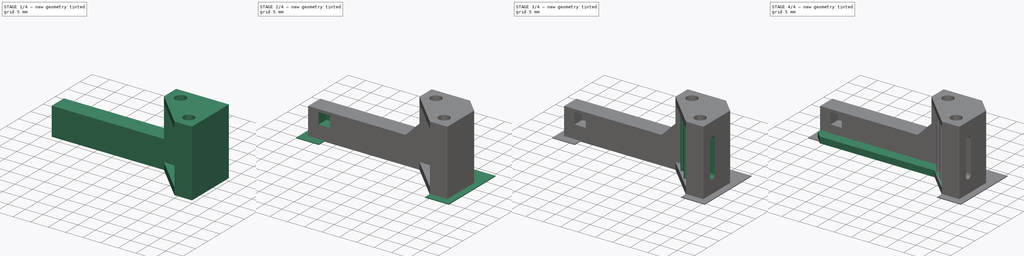
[diagram: build sequence overview — one tinted view per stage of 4, left to right]
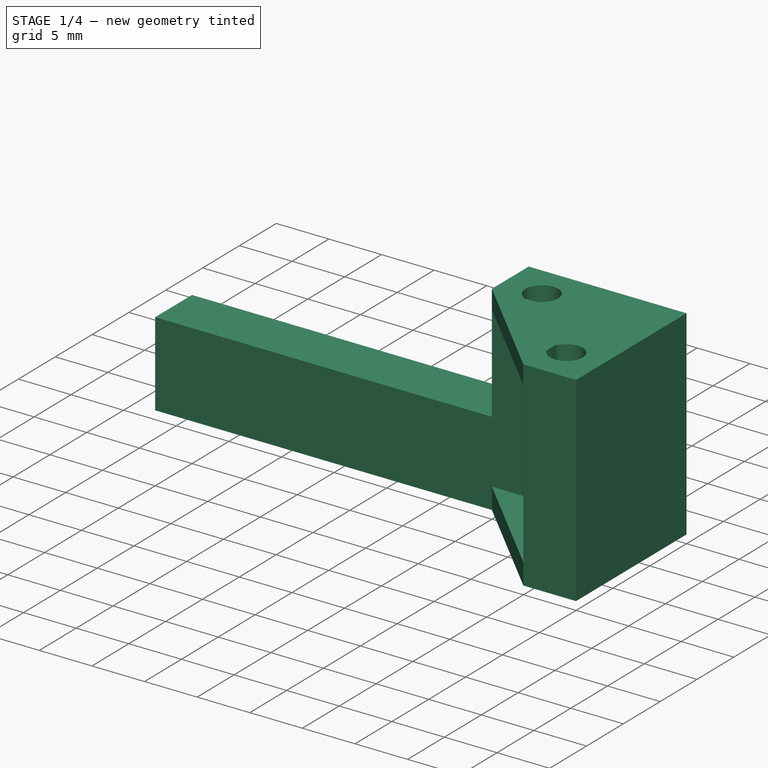
[diagram: stage 1 of 4 — iso view after this stage's code; geometry added in this stage tinted green]
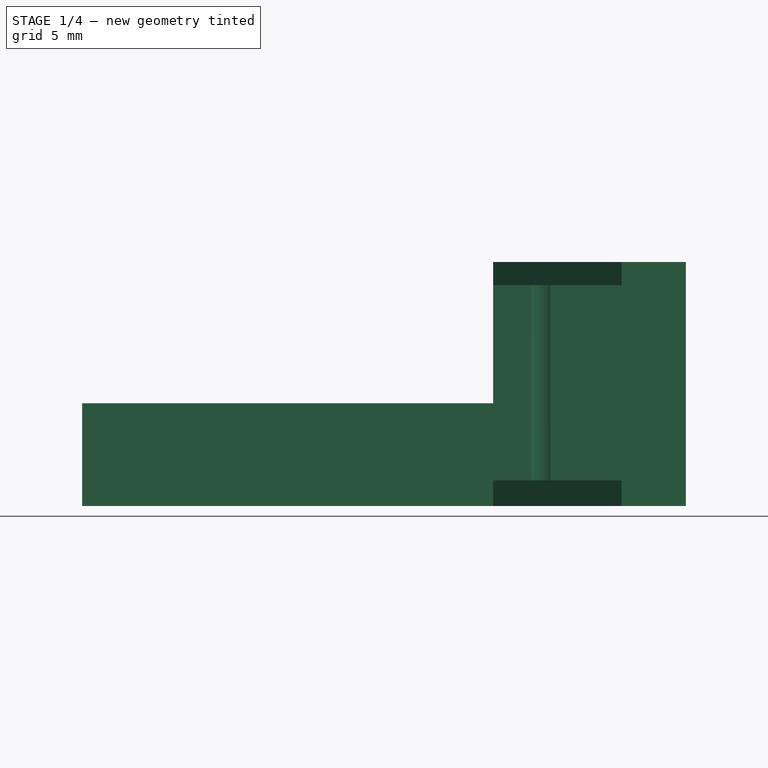
[diagram: stage 1 of 4 — front view after this stage's code; geometry added in this stage tinted green]
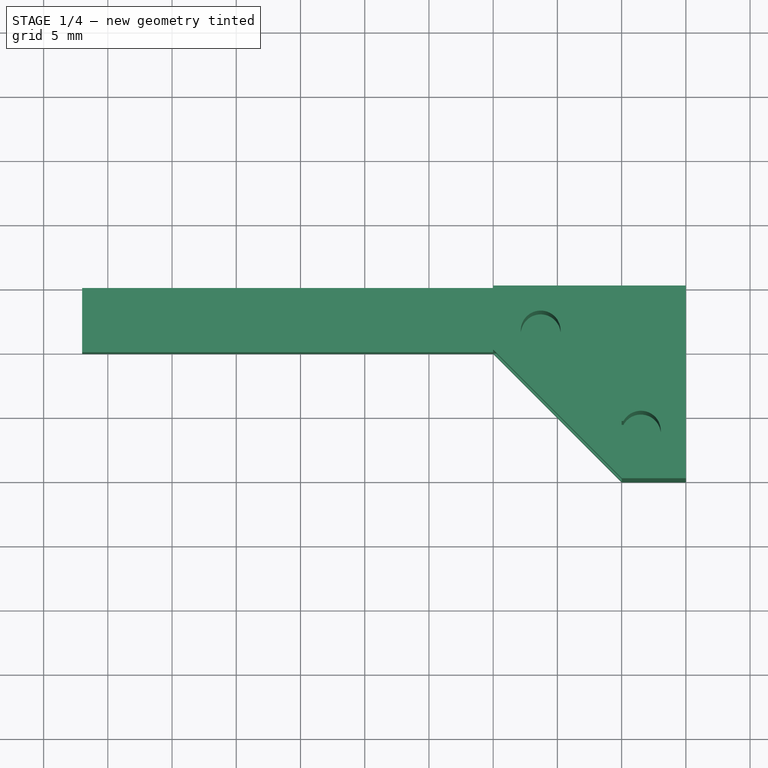
[diagram: stage 1 of 4 — top view after this stage's code; geometry added in this stage tinted green]
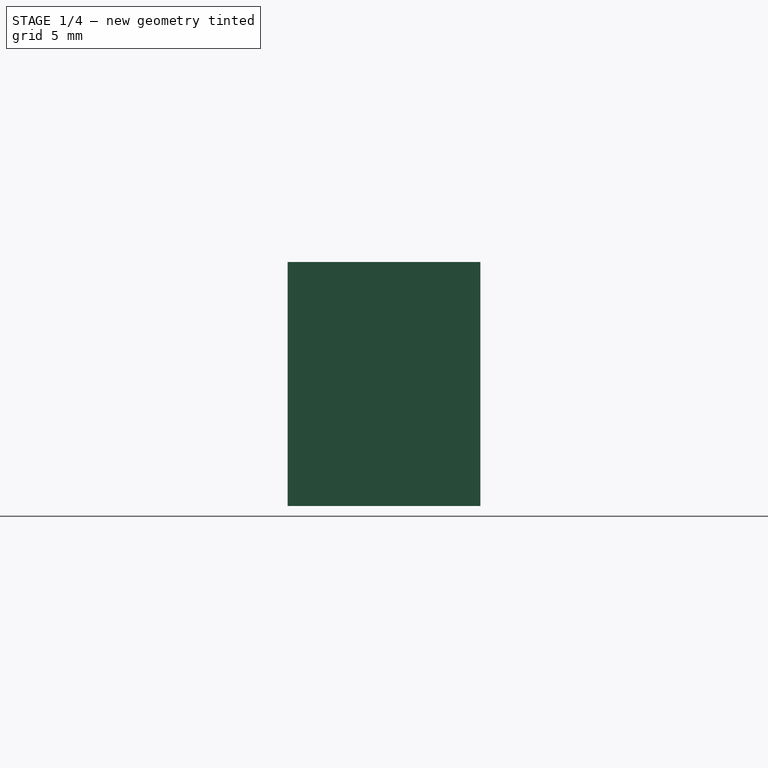
[diagram: stage 1 of 4 — right view after this stage's code; geometry added in this stage tinted green]
FCSTD DOCUMENT  (FreeCAD 0.18R15969 (Git))
Label: magnet_jig_5
License: All rights reserved
LicenseURL: http://en.wikipedia.org/wiki/All_rights_reserved
objects: Sketcher::SketchObject×10, PartDesign::Pad×7, PartDesign::Pocket×5, PartDesign::Chamfer×2, PartDesign::Body×1
note: 37 computed .brp shape members not serialized (recipe doc carries the construction recipe); baked Part::Feature solids carry a one-line shape summary decoded from their .brp

FEATURE [Sketcher::SketchObject] Sketch
  MapMode = 5
  Support = -> [XY_Plane]
  sketch-geometry (16):
    g0: LineSegment StartX=-10 StartY=0 StartZ=0 EndX=-10 EndY=5 EndZ=0
    g1: LineSegment StartX=-10 StartY=5 StartZ=0 EndX=5 EndY=5 EndZ=0
    g2: LineSegment StartX=5 StartY=5 StartZ=0 EndX=5 EndY=-10 EndZ=0
    g3: LineSegment StartX=5 StartY=-10 StartZ=0 EndX=0 EndY=-10 EndZ=0
    g4: LineSegment StartX=-10 StartY=0 StartZ=0 EndX=-7.05 EndY=0 EndZ=0
    g5: LineSegment StartX=0 StartY=0 StartZ=0 EndX=-5.55 EndY=0 EndZ=0
    g6: LineSegment StartX=0 StartY=0 StartZ=0 EndX=0 EndY=-5.55 EndZ=0
    g7: LineSegment StartX=0 StartY=-7.05 StartZ=0 EndX=0 EndY=-10 EndZ=0
    g8: LineSegment [constr] StartX=-7.05 StartY=0 StartZ=0 EndX=-5.55 EndY=0 EndZ=0
    g9: LineSegment [constr] StartX=0 StartY=-5.55 StartZ=0 EndX=0 EndY=-7.05 EndZ=0
    g10: LineSegment StartX=-7.05 StartY=0 StartZ=0 EndX=-7.05 EndY=0.143534 EndZ=0
    g11: LineSegment StartX=-5.55 StartY=0 StartZ=0 EndX=-5.55 EndY=0.143534 EndZ=0
    g12: LineSegment StartX=0 StartY=-5.55 StartZ=0 EndX=0.143534 EndY=-5.55 EndZ=0
    g13: LineSegment StartX=0 StartY=-7.05 StartZ=0 EndX=0.143534 EndY=-7.05 EndZ=0
    g14: ArcOfCircle CenterX=-6.3 CenterY=1.5 CenterZ=0 NormalX=0 NormalY=0 NormalZ=1 AngleXU=0 Radius=1.55 StartAngle=5.21746 EndAngle=10.4905
    g15: ArcOfCircle CenterX=1.5 CenterY=-6.3 CenterZ=0 NormalX=0 NormalY=0 NormalZ=1 AngleXU=0 Radius=1.55 StartAngle=3.64667 EndAngle=8.91971
  constraints (47):
    c: PointOnObject(g0,g-1)
    c: DistanceX(g0,g-1) = 10
    c: Vertical(g0)
    c: DistanceY(g0,g0) = 5
    c: Coincident(g1,g0)
    c: Horizontal(g1)
    c: Coincident(g2,g1)
    c: Vertical(g2)
    c: Coincident(g3,g2)
    c: Horizontal(g3)
    c: Equal(g0,g3)
    c: Coincident(g4,g0)
    c: PointOnObject(g4,g-1)
    c: PointOnObject(g5,g-1)
    c: PointOnObject(g6,g-2)
    c: PointOnObject(g7,g-2)
    c: Coincident(g8,g4)
    c: Coincident(g8,g5)
    c: Coincident(g9,g6)
    c: Coincident(g9,g7)
    c: Equal(g8,g9)
    c: Equal(g6,g5)
    c: Equal(g4,g7)
    c: Coincident(g10,g4)
    c: Vertical(g10)
    c: Coincident(g11,g5)
    c: Vertical(g11)
    c: Coincident(g12,g6)
    c: Horizontal(g12)
    c: Coincident(g13,g7)
    c: Horizontal(g13)
    c: Equal(g13,g12)
    c: Equal(g12,g11)
    c: Equal(g11,g10)
    c: Coincident(g14,g10)
    c: Coincident(g14,g11)
    c: Coincident(g15,g12)
    c: Coincident(g15,g13)
    c: Radius(g15) = 1.55
    c: Equal(g15,g14)
    c: DistanceX(g8,g8) = 1.5
    c: DistanceY(g0,g14) = 1.5
    c: Coincident(g5,g-1)
    c: Coincident(g6,g5)
    c: Coincident(g3,g7)
    c: PointOnObject(g3,g-2)
    c: DistanceX(g14,g5) = 6.3
FEATURE [PartDesign::Pad] Pad
  Length = 17
  Length2 = 100
  Profile = -> Sketch
  Refine = true
  Reversed = true
  Type = 0
FEATURE [Sketcher::SketchObject] Sketch001
  ExternalGeometry = -> [Pad]
  MapMode = 5
  Placement = pos=(0,0,-17) rot=(1,0,0;3.14159rad)
  Support = -> [Pad]
  sketch-geometry (5):
    g0: LineSegment StartX=5 StartY=-5 StartZ=0 EndX=-10 EndY=-5 EndZ=0
    g1: LineSegment StartX=-10 StartY=-5 StartZ=0 EndX=-10 EndY=0 EndZ=0
    g2: LineSegment StartX=-10 StartY=0 StartZ=0 EndX=0 EndY=10 EndZ=0
    g3: LineSegment StartX=0 StartY=10 StartZ=0 EndX=5 EndY=10 EndZ=0
    g4: LineSegment StartX=5 StartY=10 StartZ=0 EndX=5 EndY=-5 EndZ=0
  constraints (10):
    c: Coincident(g0,g-6)
    c: Coincident(g0,g-6)
    c: Coincident(g1,g0)
    c: Coincident(g1,g-3)
    c: Coincident(g2,g1)
    c: Coincident(g2,g-4)
    c: Coincident(g3,g2)
    c: Coincident(g3,g-5)
    c: Coincident(g4,g3)
    c: Coincident(g4,g0)
FEATURE [PartDesign::Pad] Pad001
  BaseFeature = -> Pad
  Length = 2
  Length2 = 100
  Profile = -> Sketch001
  Refine = true
  Type = 0
FEATURE [Sketcher::SketchObject] Sketch002
  ExternalGeometry = -> [Pad001]
  MapMode = 5
  Support = -> [Pad001]
  sketch-geometry (3):
    g0: LineSegment StartX=0 StartY=-10 StartZ=0 EndX=0 EndY=0 EndZ=0
    g1: LineSegment StartX=0 StartY=0 StartZ=0 EndX=-10 EndY=0 EndZ=0
    g2: LineSegment StartX=-10 StartY=0 StartZ=0 EndX=0 EndY=-10 EndZ=0
  constraints (6):
    c: Coincident(g0,g-4)
    c: Coincident(g0,g-1)
    c: Coincident(g1,g0)
    c: Coincident(g1,g-3)
    c: Coincident(g2,g1)
    c: Coincident(g2,g0)
FEATURE [PartDesign::Pad] Pad002
  BaseFeature = -> Pad001
  Length = 1.8
  Length2 = 100
  Profile = -> Sketch002
  Refine = true
  Reversed = true
  Type = 0
FEATURE [Sketcher::SketchObject] Sketch003
  ExternalGeometry = -> [Pad002]
  MapMode = 5
  Placement = pos=(0,0,0) rot=(1,0,0;1.5708rad)
  Support = -> [Pad002]
  sketch-geometry (4):
    g0: LineSegment StartX=-10 StartY=-19 StartZ=0 EndX=-10 EndY=-11 EndZ=0
    g1: LineSegment StartX=-10 StartY=-11 StartZ=0 EndX=-42 EndY=-11 EndZ=0
    g2: LineSegment StartX=-42 StartY=-11 StartZ=0 EndX=-42 EndY=-19 EndZ=0
    g3: LineSegment StartX=-42 StartY=-19 StartZ=0 EndX=-10 EndY=-19 EndZ=0
  constraints (11):
    c: Coincident(g0,g-3)
    c: PointOnObject(g0,g-4)
    c: Coincident(g1,g0)
    c: Horizontal(g1)
    c: Coincident(g2,g1)
    c: Vertical(g2)
    c: Coincident(g3,g2)
    c: Coincident(g3,g0)
    c: Horizontal(g3)
    c: DistanceX(g2,g-1) = 42
    c: DistanceY(g2,g2) = 8
FEATURE [PartDesign::Pad] Pad003
  BaseFeature = -> Pad002
  Length = 5
  Length2 = 100
  Profile = -> Sketch003
  Refine = true
  Reversed = true
  Type = 0
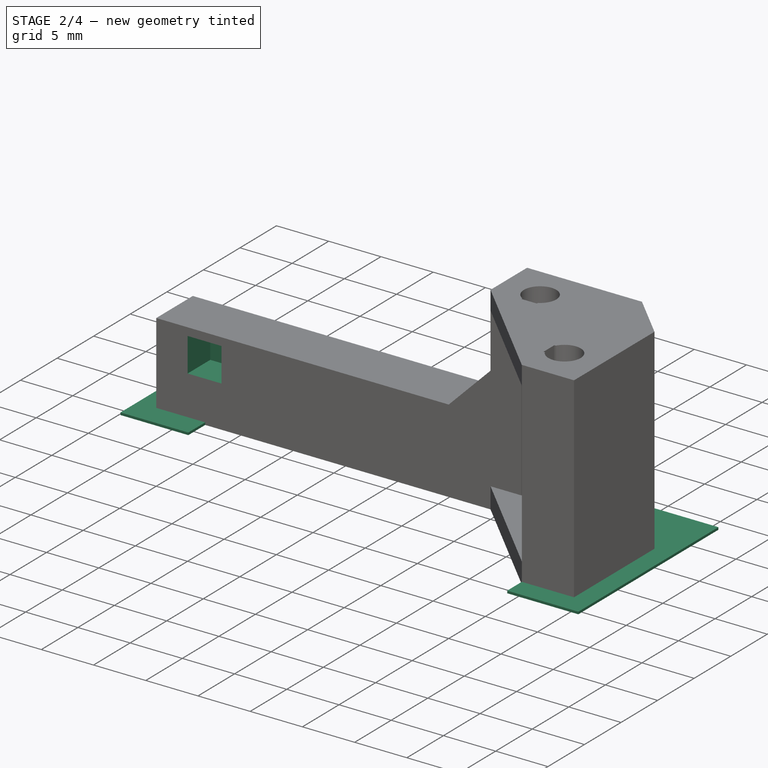
[diagram: stage 2 of 4 — iso view after this stage's code; geometry added in this stage tinted green]
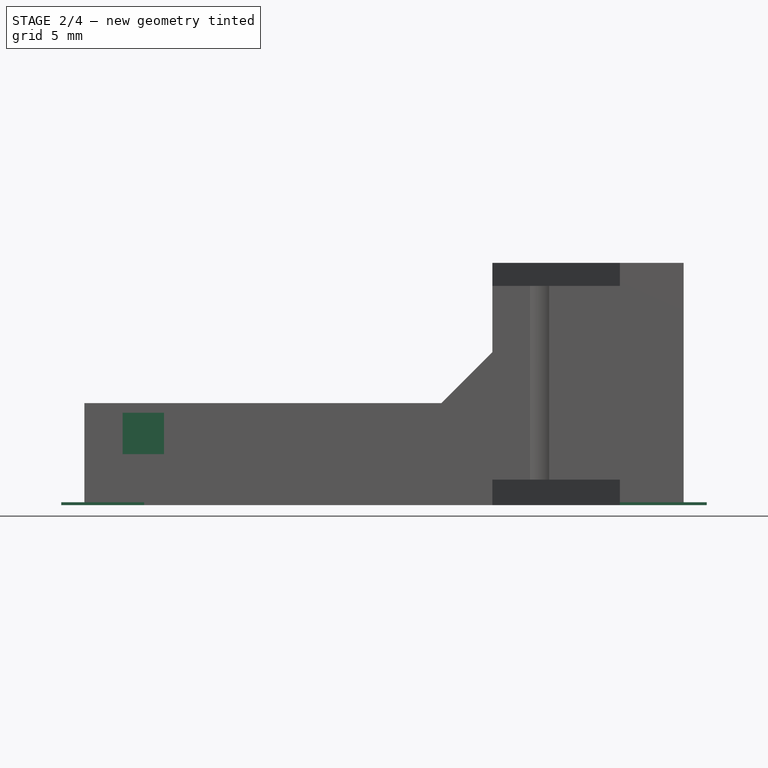
[diagram: stage 2 of 4 — front view after this stage's code; geometry added in this stage tinted green]
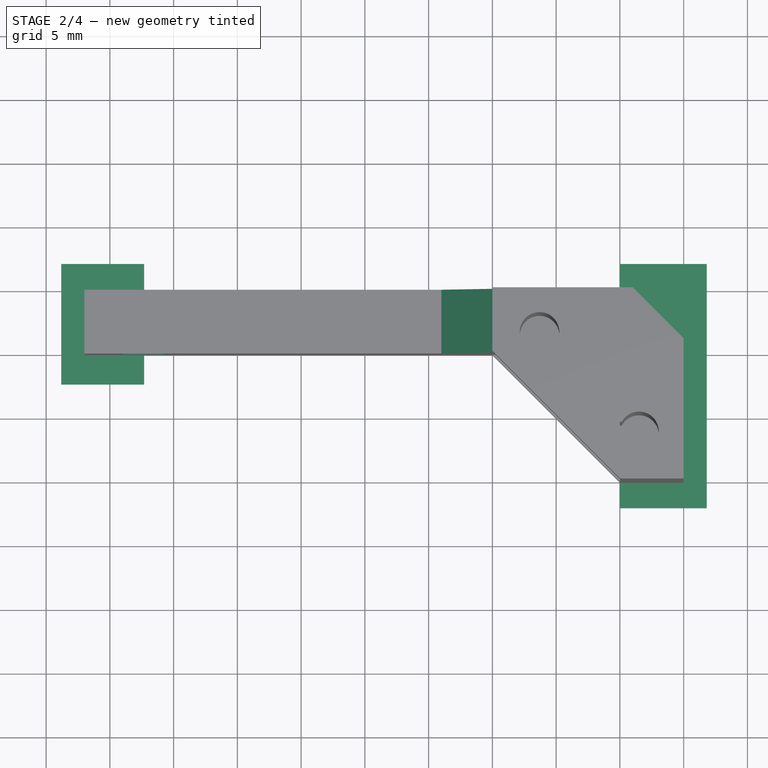
[diagram: stage 2 of 4 — top view after this stage's code; geometry added in this stage tinted green]
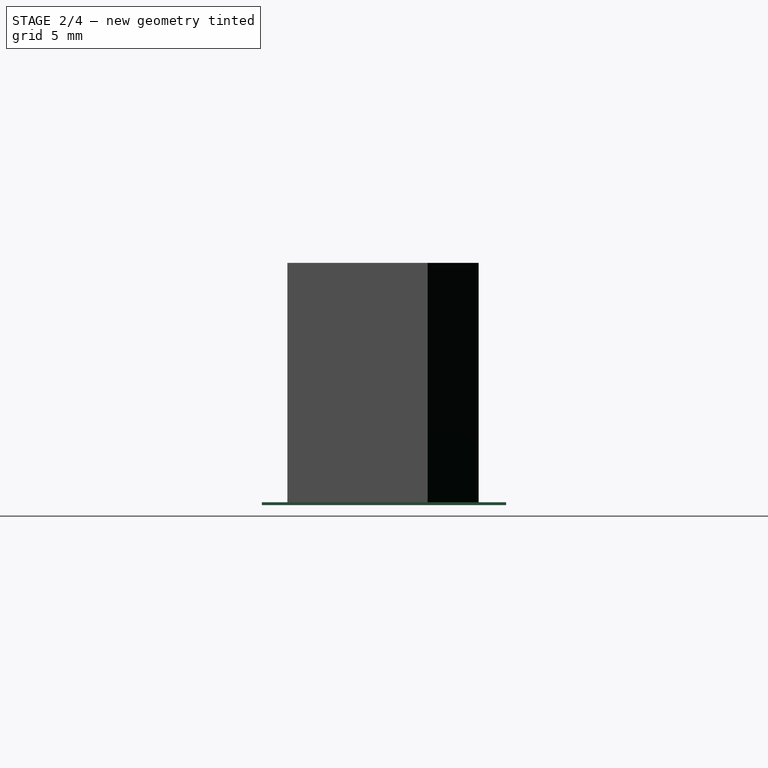
[diagram: stage 2 of 4 — right view after this stage's code; geometry added in this stage tinted green]
FEATURE [Sketcher::SketchObject] Sketch004
  ExternalGeometry = -> [Pad003]
  MapMode = 5
  Placement = pos=(0,8e-16,0) rot=(1,0,0;1.5708rad)
  Support = -> [Pad003]
  sketch-geometry (4):
    g0: LineSegment StartX=-39 StartY=-11.75 StartZ=0 EndX=-35.75 EndY=-11.75 EndZ=0
    g1: LineSegment StartX=-35.75 StartY=-11.75 StartZ=0 EndX=-35.75 EndY=-15 EndZ=0
    g2: LineSegment StartX=-35.75 StartY=-15 StartZ=0 EndX=-39 EndY=-15 EndZ=0
    g3: LineSegment StartX=-39 StartY=-15 StartZ=0 EndX=-39 EndY=-11.75 EndZ=0
  constraints (12):
    c: Coincident(g0,g1)
    c: Coincident(g1,g2)
    c: Coincident(g2,g3)
    c: Coincident(g3,g0)
    c: Horizontal(g0)
    c: Horizontal(g2)
    c: Vertical(g1)
    c: Vertical(g3)
    c: DistanceX(g0,g0) = 3.25
    c: Equal(g1,g0)
    c: DistanceY(g-3,g2) = 4
    c: DistanceX(g-3,g2) = 3
FEATURE [PartDesign::Pocket] Pocket
  BaseFeature = -> Pad003
  Length = 3.1
  Length2 = 100
  Profile = -> Sketch004
  Refine = true
  Type = 0
FEATURE [Sketcher::SketchObject] Sketch005
  MapMode = 5
  Placement = pos=(0,0,-19) rot=(1,0,0;3.14159rad)
  sketch-geometry (8):
    g0: LineSegment StartX=-43.8122 StartY=2.30484 StartZ=0 EndX=-37.3145 EndY=2.30484 EndZ=0
    g1: LineSegment StartX=-37.3145 StartY=2.30484 StartZ=0 EndX=-37.3145 EndY=-7.1567 EndZ=0
    g2: LineSegment StartX=-37.3145 StartY=-7.1567 StartZ=0 EndX=-43.8122 EndY=-7.1567 EndZ=0
    g3: LineSegment StartX=-43.8122 StartY=-7.1567 StartZ=0 EndX=-43.8122 EndY=2.30484 EndZ=0
    g4: LineSegment StartX=6.80961 StartY=11.9983 StartZ=0 EndX=0 EndY=11.9983 EndZ=0
    g5: LineSegment StartX=0 StartY=11.9983 StartZ=0 EndX=0 EndY=-7.15279 EndZ=0
    g6: LineSegment StartX=0 StartY=-7.15279 StartZ=0 EndX=6.80961 EndY=-7.15279 EndZ=0
    g7: LineSegment StartX=6.80961 StartY=-7.15279 StartZ=0 EndX=6.80961 EndY=11.9983 EndZ=0
  constraints (17):
    c: Coincident(g0,g1)
    c: Coincident(g1,g2)
    c: Coincident(g2,g3)
    c: Coincident(g3,g0)
    c: Horizontal(g0)
    c: Horizontal(g2)
    c: Vertical(g1)
    c: Vertical(g3)
    c: Coincident(g4,g5)
    c: Coincident(g5,g6)
    c: Coincident(g6,g7)
    c: Coincident(g7,g4)
    c: Horizontal(g4)
    c: Horizontal(g6)
    c: Vertical(g5)
    c: Vertical(g7)
    c: PointOnObject(g4,g-2)
FEATURE [PartDesign::Pad] Pad004
  BaseFeature = -> Pocket
  Length = 0.225
  Length2 = 100
  Profile = -> Sketch005
  Refine = true
  Reversed = true
  Type = 0
FEATURE [PartDesign::Chamfer] Chamfer
  Base = -> Pad004 [Edge36,Edge44]
  BaseFeature = -> Pad004
  Size = 4
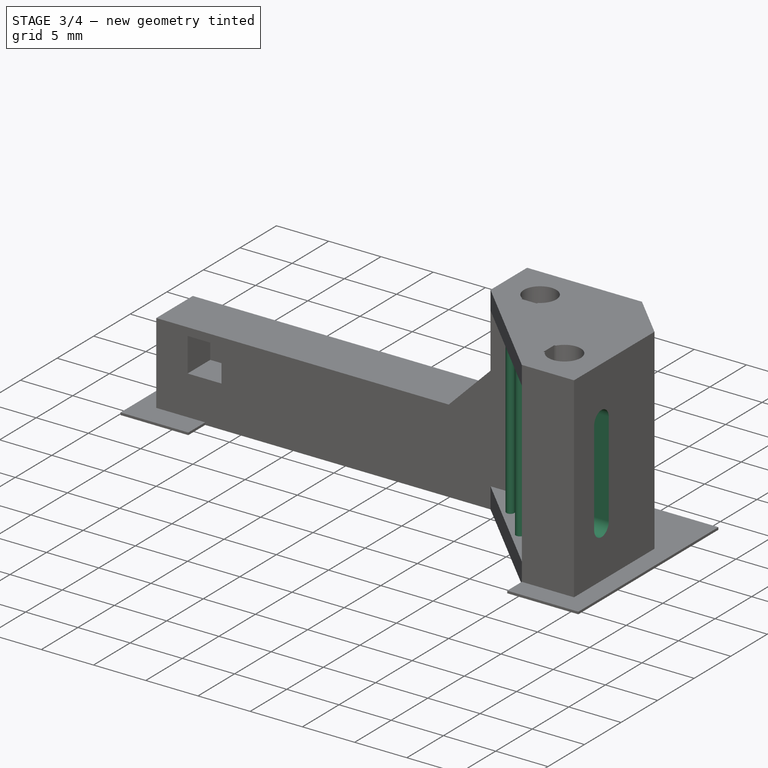
[diagram: stage 3 of 4 — iso view after this stage's code; geometry added in this stage tinted green]
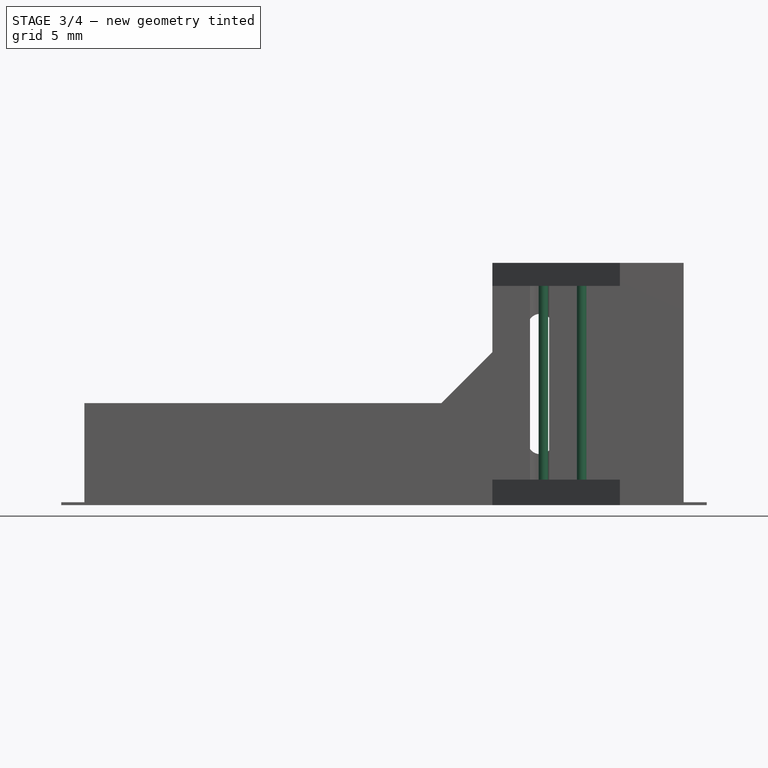
[diagram: stage 3 of 4 — front view after this stage's code; geometry added in this stage tinted green]
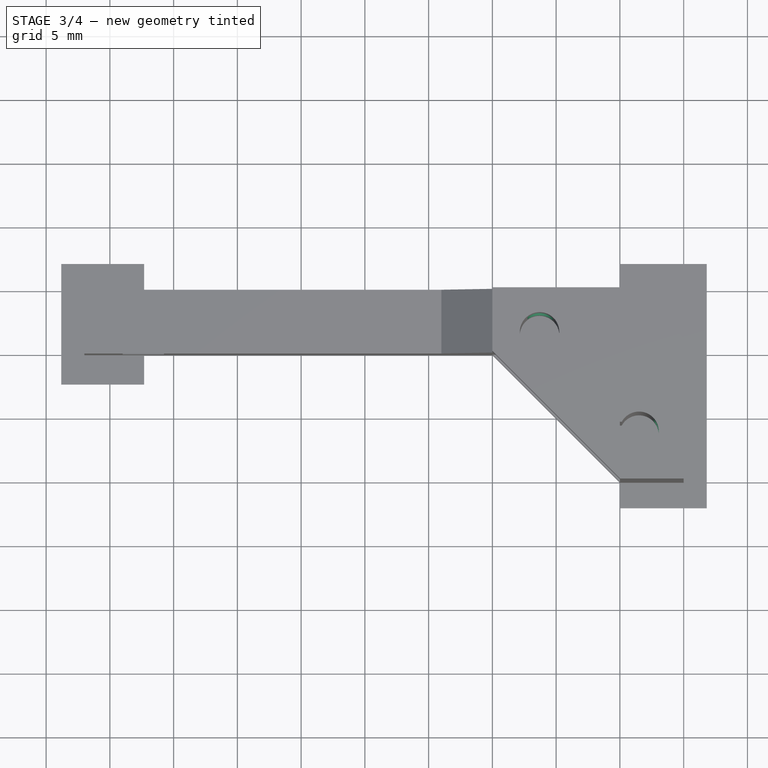
[diagram: stage 3 of 4 — top view after this stage's code; geometry added in this stage tinted green]
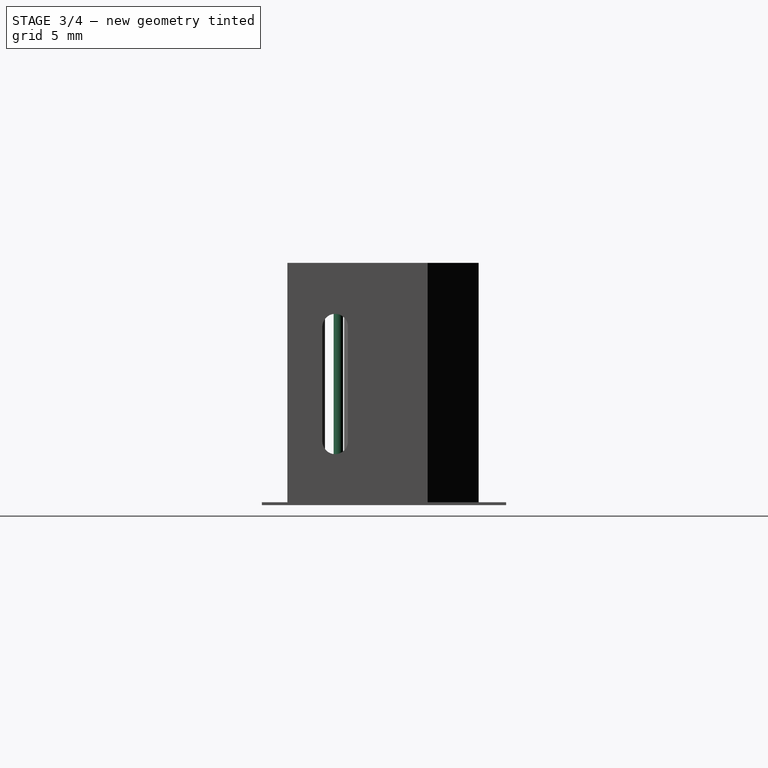
[diagram: stage 3 of 4 — right view after this stage's code; geometry added in this stage tinted green]
FEATURE [Sketcher::SketchObject] Sketch006
  ExternalGeometry = -> [Chamfer]
  MapMode = 5
  Placement = pos=(0,0,-17) rot=(0,0,1;0rad)
  Support = -> [Chamfer]
  sketch-geometry (2):
    g0: Circle CenterX=-6 CenterY=-3 CenterZ=0 NormalX=0 NormalY=0 NormalZ=1 AngleXU=0 Radius=0.375
    g1: Circle CenterX=-3 CenterY=-6 CenterZ=0 NormalX=0 NormalY=0 NormalZ=1 AngleXU=0 Radius=0.375
  constraints (2):
    c: Diameter(g0) = 0.75
    c: Equal(g0,g1)
FEATURE [PartDesign::Pad] Pad005
  BaseFeature = -> Chamfer
  Length = 16
  Length2 = 100
  Profile = -> Sketch006
  Refine = true
  Type = 0
FEATURE [Sketcher::SketchObject] Sketch007
  ExternalGeometry = -> [Pad005]
  MapMode = 5
  Placement = pos=(5,0,0) rot=(0.57735,0.57735,0.57735;2.0944rad)
  Support = -> [Pad005]
  sketch-geometry (4):
    g0: ArcOfCircle CenterX=-6.25 CenterY=-5 CenterZ=0 NormalX=0 NormalY=0 NormalZ=1 AngleXU=0 Radius=1 StartAngle=0 EndAngle=3.14159
    g1: ArcOfCircle CenterX=-6.25 CenterY=-14 CenterZ=0 NormalX=0 NormalY=0 NormalZ=1 AngleXU=0 Radius=1 StartAngle=3.14159 EndAngle=6.28319
    g2: LineSegment StartX=-7.25 StartY=-5 StartZ=0 EndX=-7.25 EndY=-14 EndZ=0
    g3: LineSegment StartX=-5.25 StartY=-5 StartZ=0 EndX=-5.25 EndY=-14 EndZ=0
  constraints (10):
    c: Tangent(g0,g3) = 1.5708
    c: Tangent(g0,g2) = -1.5708
    c: Tangent(g2,g1) = -1.5708
    c: Tangent(g3,g1) = 1.5708
    c: Vertical(g2)
    c: Equal(g0,g1)
    c: DistanceX(g0,g-1) = 6.25
    c: Radius(g0) = 1
    c: DistanceY(g0,g-4) = 5
    c: DistanceY(g-3,g1) = 5
FEATURE [PartDesign::Pocket] Pocket001
  BaseFeature = -> Pad005
  Length = 6
  Length2 = 100
  Midplane = true
  Profile = -> Sketch007
  Refine = true
  Type = 0
FEATURE [Sketcher::SketchObject] Sketch008
  ExternalGeometry = -> [Pocket001]
  MapMode = 5
  Placement = pos=(-3e-16,5,-5e-16) rot=(0,0.707107,0.707107;3.14159rad)
  Support = -> [Pocket001]
  sketch-geometry (4):
    g0: ArcOfCircle CenterX=6.25 CenterY=-5 CenterZ=0 NormalX=0 NormalY=0 NormalZ=1 AngleXU=0 Radius=1 StartAngle=6.856e-13 EndAngle=3.14159
    g1: ArcOfCircle CenterX=6.25 CenterY=-14 CenterZ=0 NormalX=0 NormalY=0 NormalZ=1 AngleXU=0 Radius=1 StartAngle=3.14159 EndAngle=6.28319
    g2: LineSegment StartX=5.25 StartY=-5 StartZ=0 EndX=5.25 EndY=-14 EndZ=0
    g3: LineSegment StartX=7.25 StartY=-5 StartZ=0 EndX=7.25 EndY=-14 EndZ=0
  constraints (10):
    c: Tangent(g0,g3) = 1.5708
    c: Tangent(g0,g2) = -1.5708
    c: Tangent(g2,g1) = -1.5708
    c: Tangent(g3,g1) = 1.5708
    c: Vertical(g2)
    c: Equal(g0,g1)
    c: DistanceY(g-4,g1) = 5
    c: DistanceY(g0,g-3) = 5
    c: Radius(g0) = 1
    c: DistanceX(g-1,g0) = 6.25
FEATURE [PartDesign::Pocket] Pocket002
  BaseFeature = -> Pocket001
  Length = 3
  Length2 = 100
  Profile = -> Sketch008
  Refine = true
  Type = 0
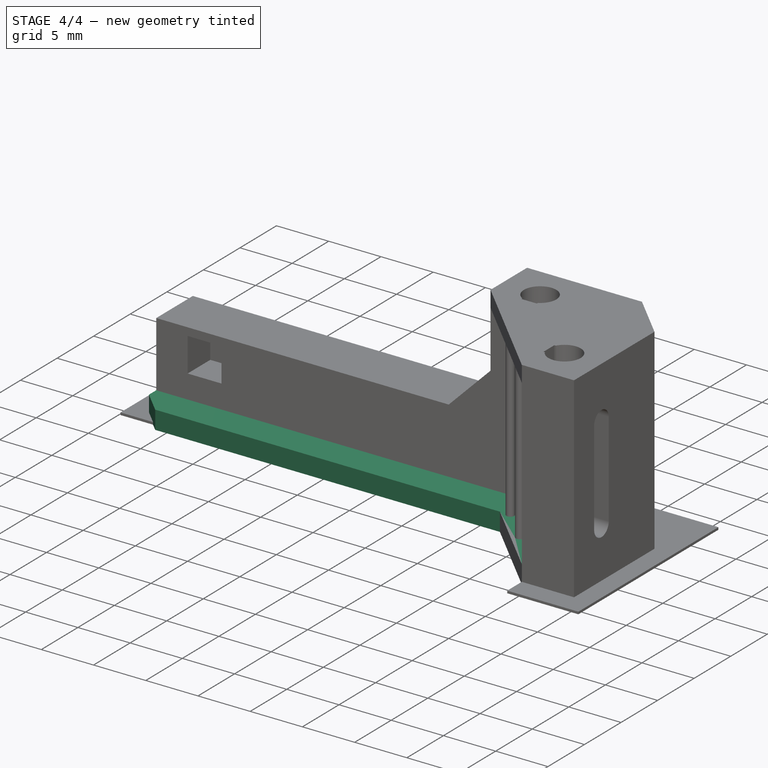
[diagram: stage 4 of 4 — iso view after this stage's code; geometry added in this stage tinted green]
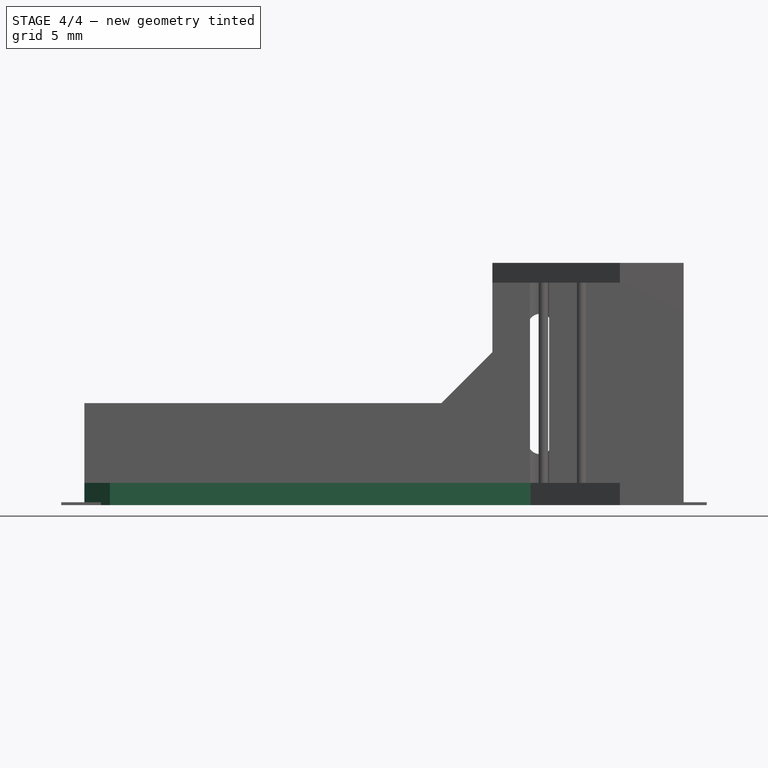
[diagram: stage 4 of 4 — front view after this stage's code; geometry added in this stage tinted green]
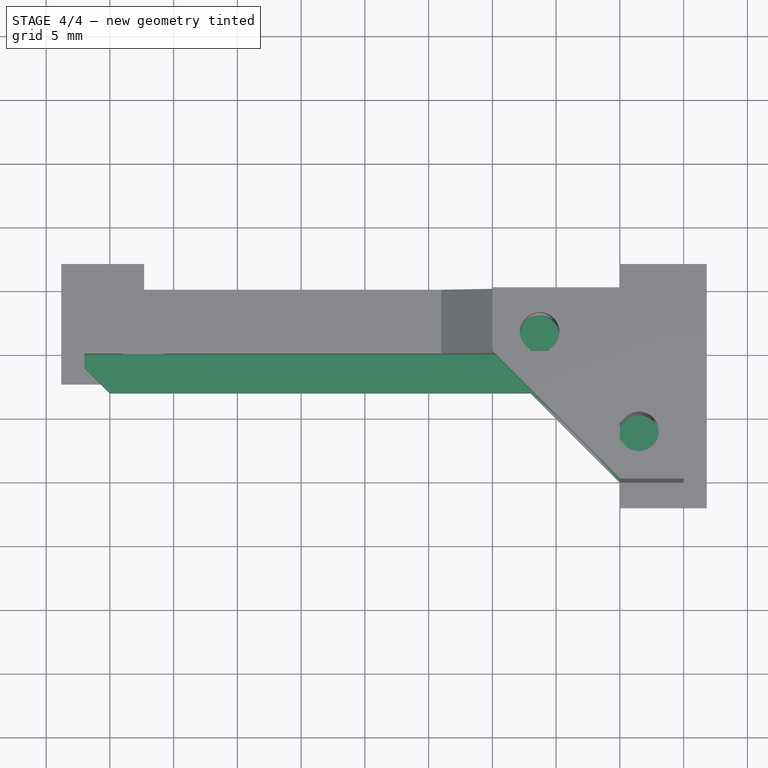
[diagram: stage 4 of 4 — top view after this stage's code; geometry added in this stage tinted green]
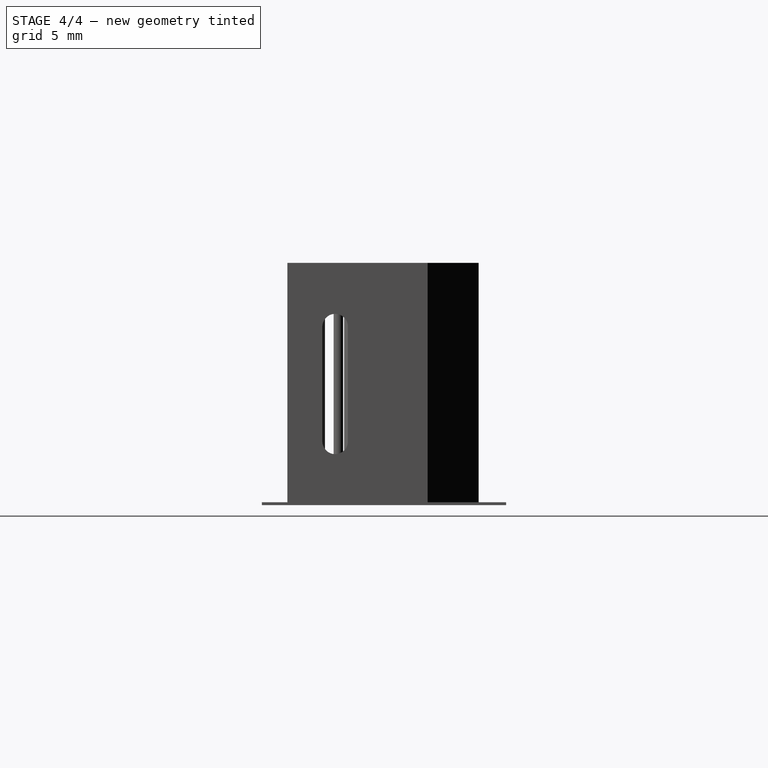
[diagram: stage 4 of 4 — right view after this stage's code; geometry added in this stage tinted green]
FEATURE [Sketcher::SketchObject] Sketch009
  ExternalGeometry = -> [Pocket002]
  MapMode = 5
  Placement = pos=(0,8e-16,0) rot=(1,0,0;1.5708rad)
  Support = -> [Pocket002]
  sketch-geometry (4):
    g0: LineSegment StartX=-4e-16 StartY=-17 StartZ=0 EndX=-42 EndY=-17 EndZ=0
    g1: LineSegment StartX=-42 StartY=-17 StartZ=0 EndX=-42 EndY=-19 EndZ=0
    g2: LineSegment StartX=-42 StartY=-19 StartZ=0 EndX=0 EndY=-19 EndZ=0
    g3: LineSegment StartX=-4e-16 StartY=-19 StartZ=0 EndX=-4e-16 EndY=-17 EndZ=0
  constraints (11):
    c: Coincident(g0,g1)
    c: Coincident(g1,g2)
    c: Coincident(g2,g3)
    c: Coincident(g3,g0)
    c: Horizontal(g0)
    c: Horizontal(g2)
    c: Vertical(g1)
    c: Vertical(g3)
    c: Coincident(g0,g-3)
    c: PointOnObject(g1,g-4)
    c: PointOnObject(g2,g-5)
FEATURE [PartDesign::Pad] Pad006
  BaseFeature = -> Pocket002
  Length = 3
  Length2 = 100
  Profile = -> Sketch009
  Refine = true
  Type = 0
FEATURE [PartDesign::Chamfer] Chamfer001
  Base = -> Pad006 [Edge129]
  BaseFeature = -> Pad006
  Size = 2
FEATURE [PartDesign::Pocket] Pocket003
  BaseFeature = -> Chamfer001
  Length = 0.25
  Length2 = 100
  Profile = -> Chamfer001 [Face9]
  Refine = true
  Type = 0
FEATURE [PartDesign::Pocket] Pocket004
  BaseFeature = -> Pocket003
  Length = 0.25
  Length2 = 100
  Profile = -> Pocket003 [Face29]
  Refine = true
  Type = 0
FEATURE [PartDesign::Body] Body
  Group = -> [Sketch,Pad,Sketch001,Pad001,Sketch002,Pad002,Sketch003,Pad003,Sketch004,Pocket,Sketch005,Pad004,Chamfer,Sketch006,Pad005,Sketch007,Pocket001,Sketch008,Pocket002,Sketch009,Pad006,Chamfer001,Pocket003,Pocket004]
  Origin = -> Origin
  Tip = -> Pocket004
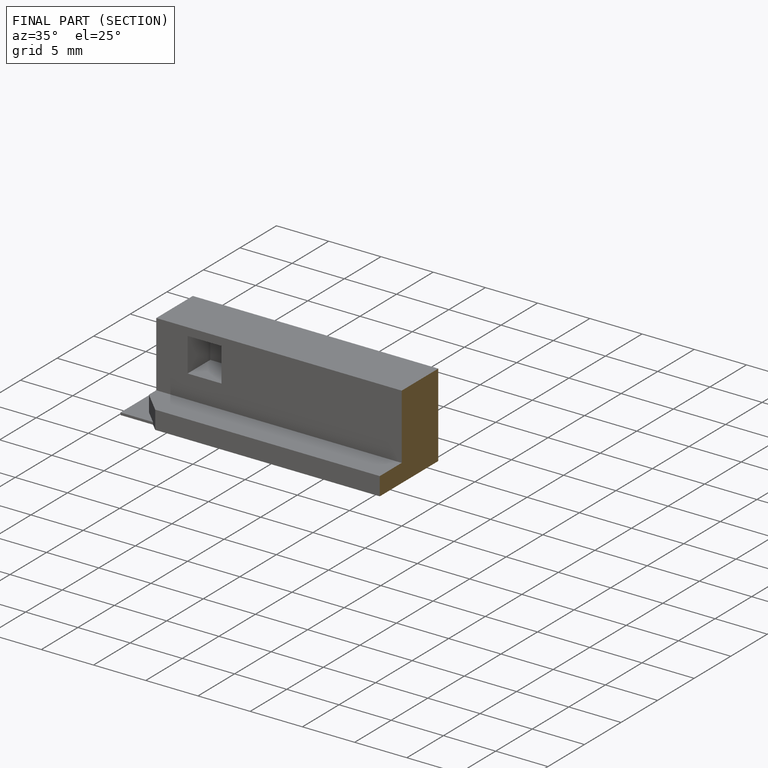
[diagram: finished part — half-section view (interior)]
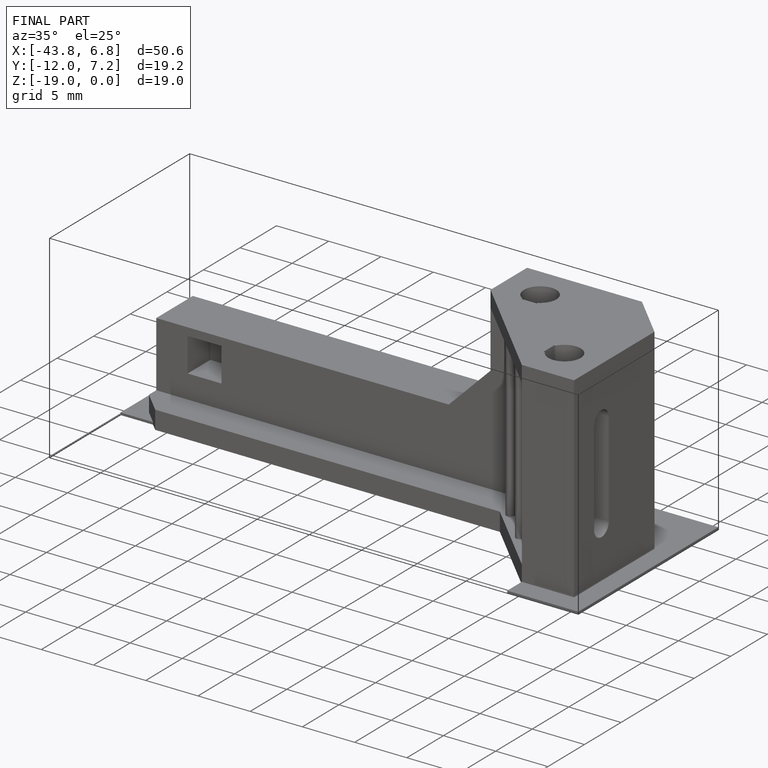
[diagram: finished part — iso view with bounding-box wireframe]
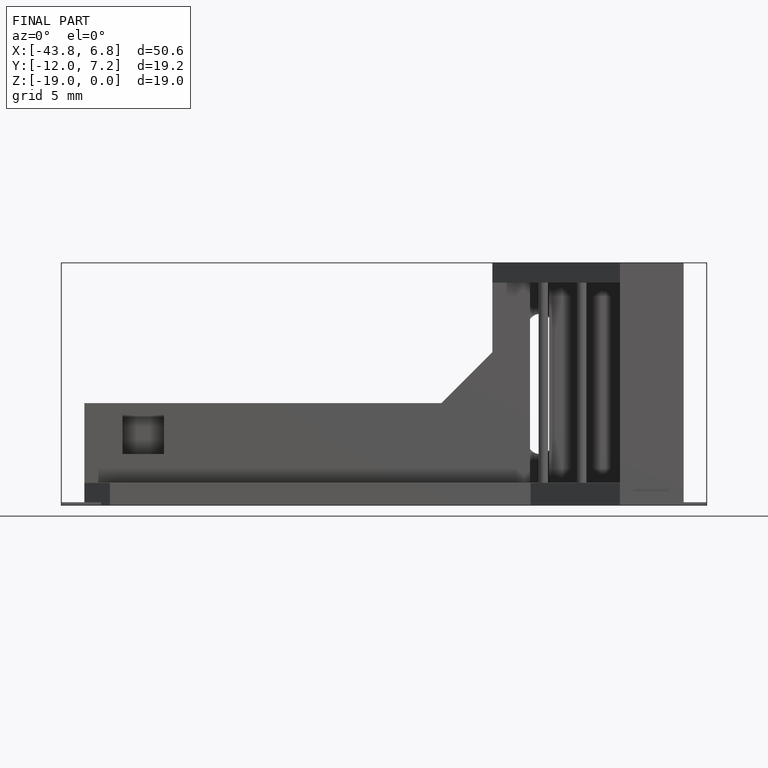
[diagram: finished part — front view with bounding-box wireframe]
